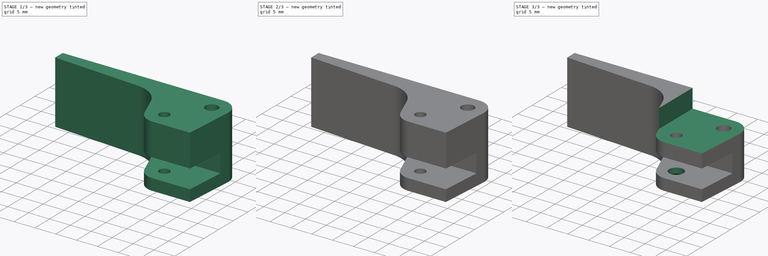
[diagram: build sequence overview — one tinted view per stage of 3, left to right]
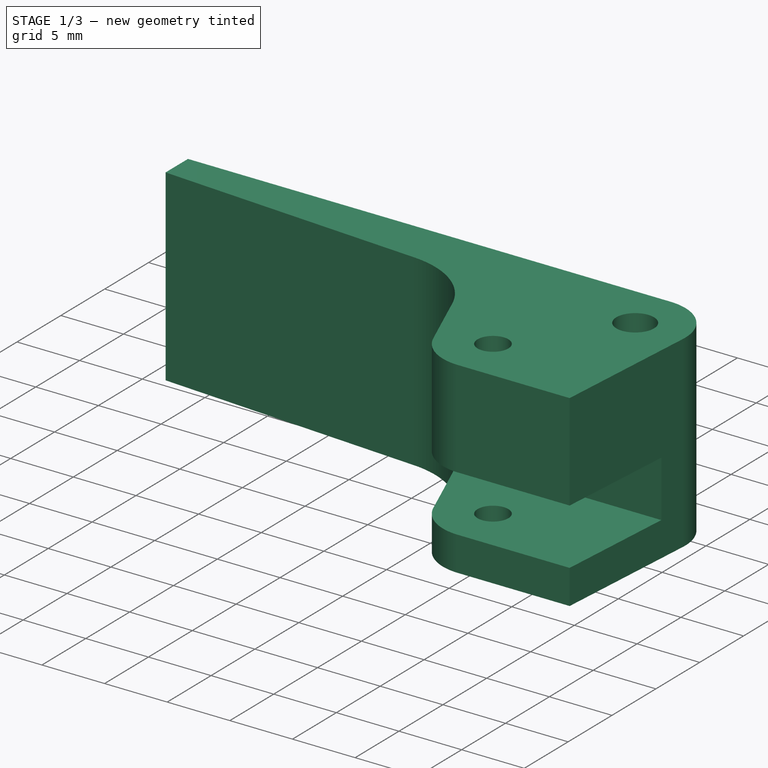
[diagram: stage 1 of 3 — iso view after this stage's code; geometry added in this stage tinted green]
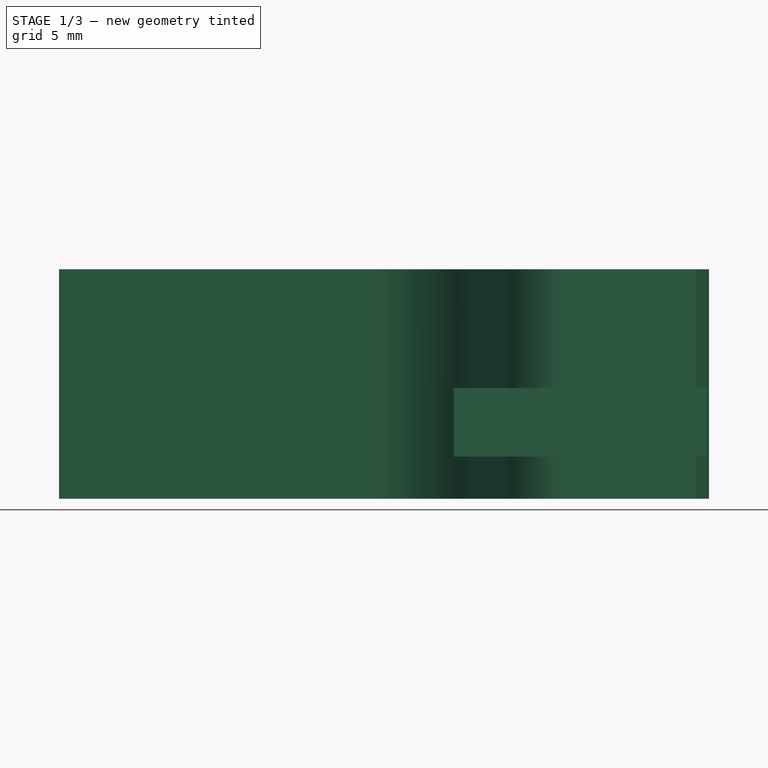
[diagram: stage 1 of 3 — front view after this stage's code; geometry added in this stage tinted green]
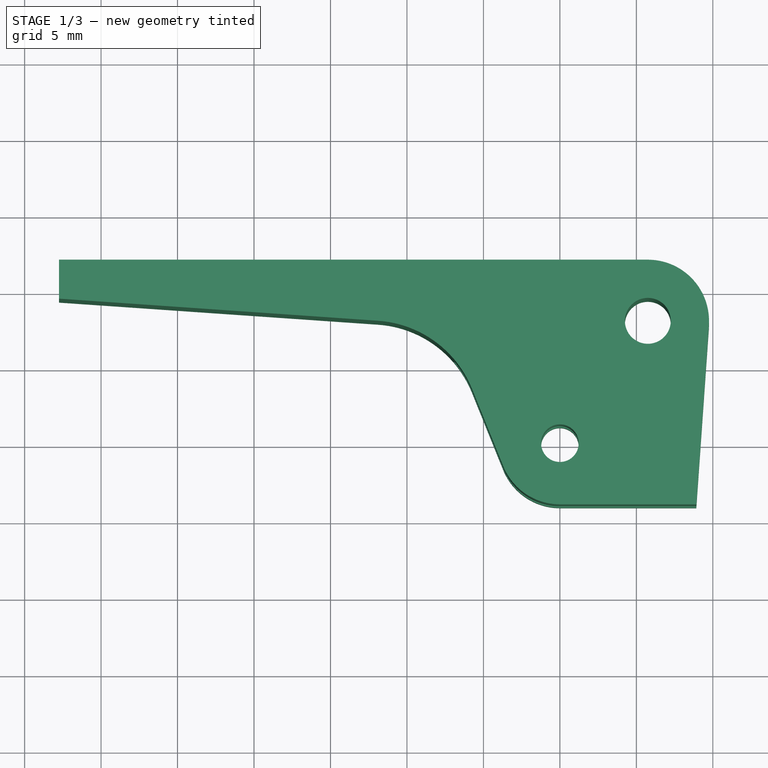
[diagram: stage 1 of 3 — top view after this stage's code; geometry added in this stage tinted green]
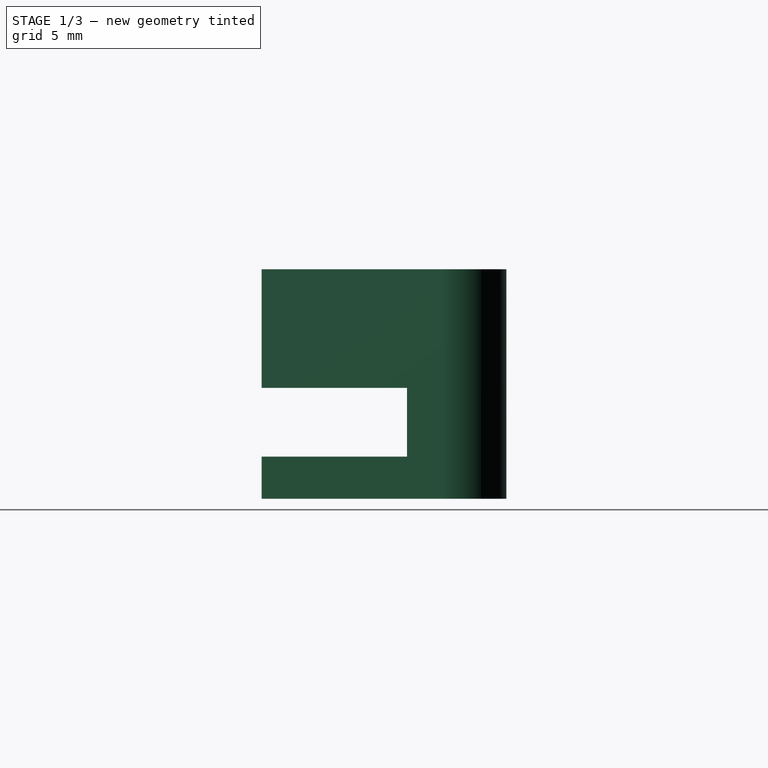
[diagram: stage 1 of 3 — right view after this stage's code; geometry added in this stage tinted green]
FCSTD DOCUMENT  (FreeCAD 0.15R4669 (Git))
Label: Extruder-lever
License: CC-BY 3.0
LicenseURL: http://creativecommons.org/licenses/by/3.0/
objects: Sketcher::SketchObject×6, PartDesign::Pocket×5, Part::Chamfer×2, PartDesign::Pad×1, Part::Feature×1
note: 21 computed .brp shape members not serialized (recipe doc carries the construction recipe); baked Part::Feature solids carry a one-line shape summary decoded from their .brp

FEATURE [Sketcher::SketchObject] Sketch  label="main-body-sketch"
  sketch-geometry (10):
    g0: LineSegment StartX=-3.70874 StartY=-1.49843 StartZ=0 EndX=-5.74874 EndY=3.55075 EndZ=0
    g1: LineSegment StartX=-11.8842 StartY=8.00524 StartZ=0 EndX=-32.75 EndY=9.45 EndZ=0
    g2: LineSegment StartX=-32.75 StartY=9.45 StartZ=0 EndX=-32.75 EndY=12 EndZ=0
    g3: LineSegment StartX=-32.75 StartY=12 StartZ=0 EndX=5.75 EndY=12 EndZ=0
    g4: LineSegment StartX=9.74024 StartY=7.72076 StartZ=0 EndX=8.92 EndY=-4 EndZ=0
    g5: LineSegment StartX=8.92 StartY=-4 StartZ=0 EndX=0 EndY=-4 EndZ=0
    g6: ArcOfCircle CenterX=5.75 CenterY=8 CenterZ=0 NormalX=0 NormalY=0 NormalZ=1 Radius=4 StartAngle=6.21332 EndAngle=7.85398
    g7: ArcOfCircle CenterX=0 CenterY=0 CenterZ=0 NormalX=0 NormalY=0 NormalZ=1 Radius=4 StartAngle=3.52557 EndAngle=4.71239
    g8: LineSegment [constr] StartX=-3.70874 StartY=-1.49843 StartZ=0 EndX=0 EndY=0 EndZ=0
    g9: ArcOfCircle CenterX=-12.3781 CenterY=0.872314 CenterZ=0 NormalX=0 NormalY=0 NormalZ=1 Radius=7.15 StartAngle=0.383972 EndAngle=1.50167
  constraints (26):
    c: Coincident(g1,g2)
    c: Coincident(g2,g3)
    c: Coincident(g4,g5)
    c: Horizontal(g3)
    c: Vertical(g2)
    c: Horizontal(g5)
    c: DistanceY(g-1,g2) = 12
    c: DistanceY(g2) = 2.55
    c: Tangent(g3,g6)
    c: Tangent(g4,g6)
    c: DistanceX(g-1,g6) = 5.75
    c: DistanceY(g-1,g6) = 8
    c: DistanceX(g3) = 38.5
    c: DistanceX(g-1,g4) = 8.92
    c: DistanceY(g-1,g4) = -4
    c: Tangent(g0,g7)
    c: Tangent(g5,g7)
    c: PointOnObject(g5,g-2)
    c: Angle(g-1,g0) = 1.95477
    c: Coincident(g8,g-1)
    c: Coincident(g8,g0)
    c: Perpendicular(g0,g8)
    c: Tangent(g0,g9)
    c: Tangent(g1,g9)
    c: DistanceX(g0,g0) = -2.04
    c: Radius(g9) = 7.15
FEATURE [PartDesign::Pad] Pad  label="main-body"
  Length = 15
  Length2 = 100
  Midplane = true
  Sketch = -> Sketch
  Type = 0
FEATURE [Sketcher::SketchObject] Sketch001  label="bottom-slot-sketch"
  Placement = pos=(0,-4,0) rot=(1,0,0;1.5708rad)
  Support = -> Pad [Face2]
  sketch-geometry (4):
    g0: LineSegment StartX=-15 StartY=-0.25 StartZ=0 EndX=15 EndY=-0.25 EndZ=0
    g1: LineSegment StartX=15 StartY=-0.25 StartZ=0 EndX=15 EndY=-4.75 EndZ=0
    g2: LineSegment StartX=15 StartY=-4.75 StartZ=0 EndX=-15 EndY=-4.75 EndZ=0
    g3: LineSegment StartX=-15 StartY=-4.75 StartZ=0 EndX=-15 EndY=-0.25 EndZ=0
  constraints (12):
    c: Coincident(g0,g1)
    c: Coincident(g1,g2)
    c: Coincident(g2,g3)
    c: Coincident(g3,g0)
    c: Horizontal(g0)
    c: Horizontal(g2)
    c: Vertical(g1)
    c: Vertical(g3)
    c: DistanceY(g1) = -4.5
    c: DistanceY(g-1,g0) = -0.25
    c: Symmetric(g0,g0,g-2)
    c: DistanceX(g2) = -30
FEATURE [PartDesign::Pocket] Pocket  label="bottom-slot"
  Length = 9.5
  Sketch = -> Sketch001
  Type = 0
FEATURE [Sketcher::SketchObject] Sketch002  label="lateral-drills-sketch"
  Placement = pos=(0,0,7.5) rot=(0,0,1;0rad)
  Support = -> Pocket [Face8]
  sketch-geometry (2):
    g0: Circle CenterX=0 CenterY=0 CenterZ=0 NormalX=0 NormalY=0 NormalZ=1 Radius=1.23
    g1: Circle CenterX=5.75 CenterY=8 CenterZ=0 NormalX=0 NormalY=0 NormalZ=1 Radius=1.5
  constraints (5):
    c: Radius(g0) = 1.23
    c: Coincident(g0,g-1)
    c: DistanceX(g-1,g1) = 5.75
    c: DistanceY(g-1,g1) = 8
    c: Radius(g1) = 1.5
FEATURE [PartDesign::Pocket] Pocket001  label="lateral-drills"
  Length = 5
  Sketch = -> Sketch002
  Type = 1
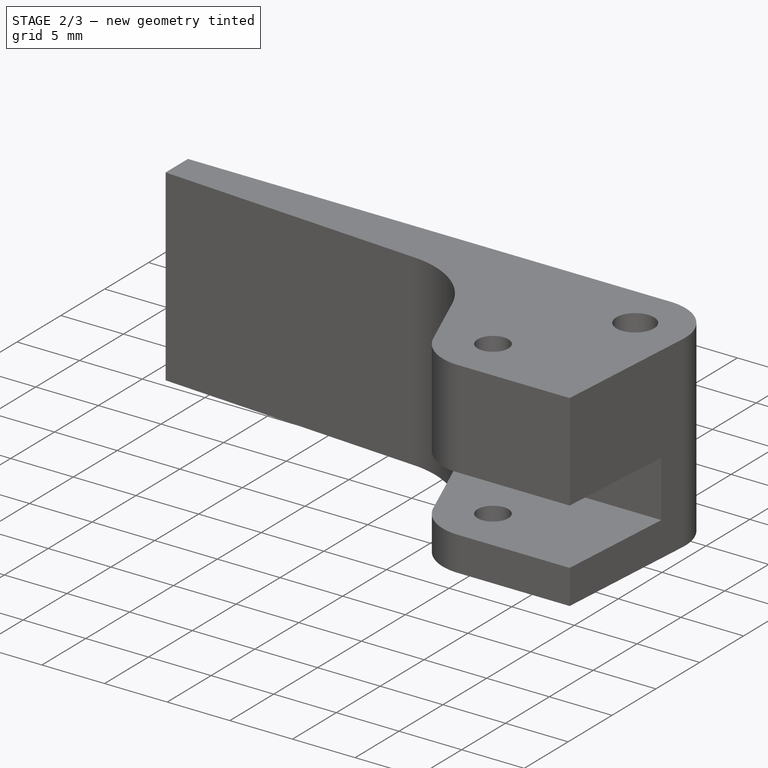
[diagram: stage 2 of 3 — iso view after this stage's code; geometry added in this stage tinted green]
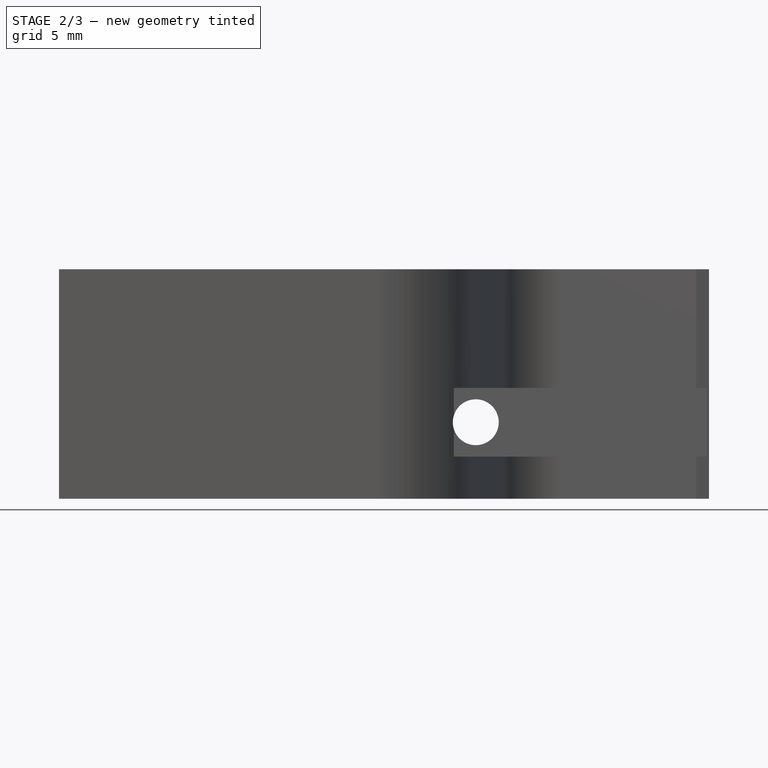
[diagram: stage 2 of 3 — front view after this stage's code; geometry added in this stage tinted green]
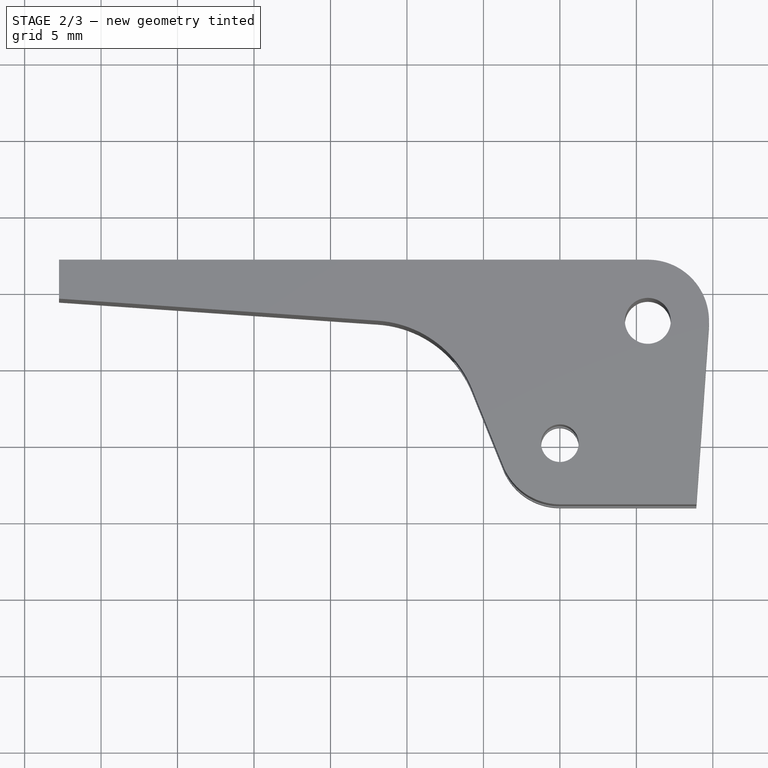
[diagram: stage 2 of 3 — top view after this stage's code; geometry added in this stage tinted green]
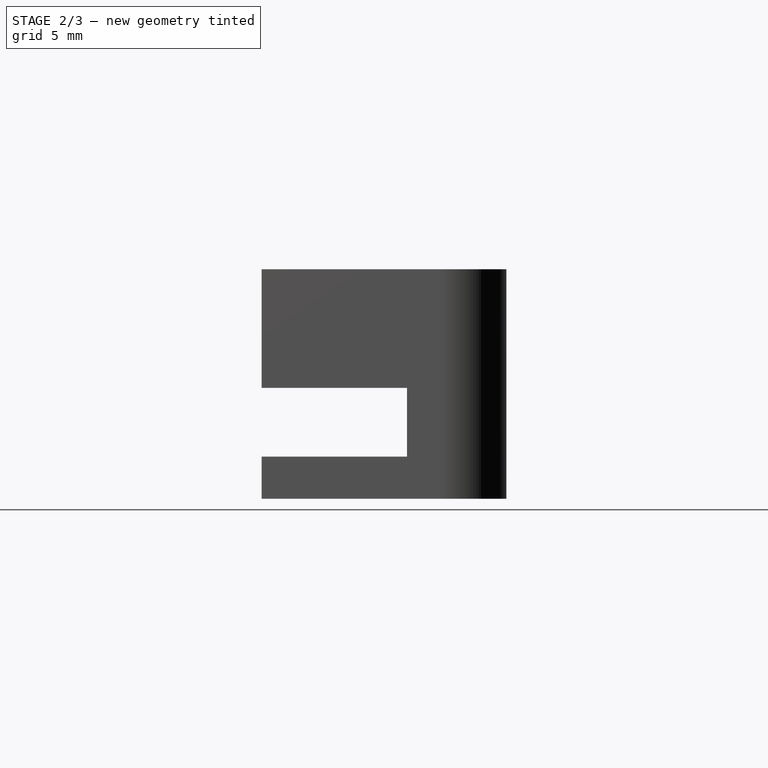
[diagram: stage 2 of 3 — right view after this stage's code; geometry added in this stage tinted green]
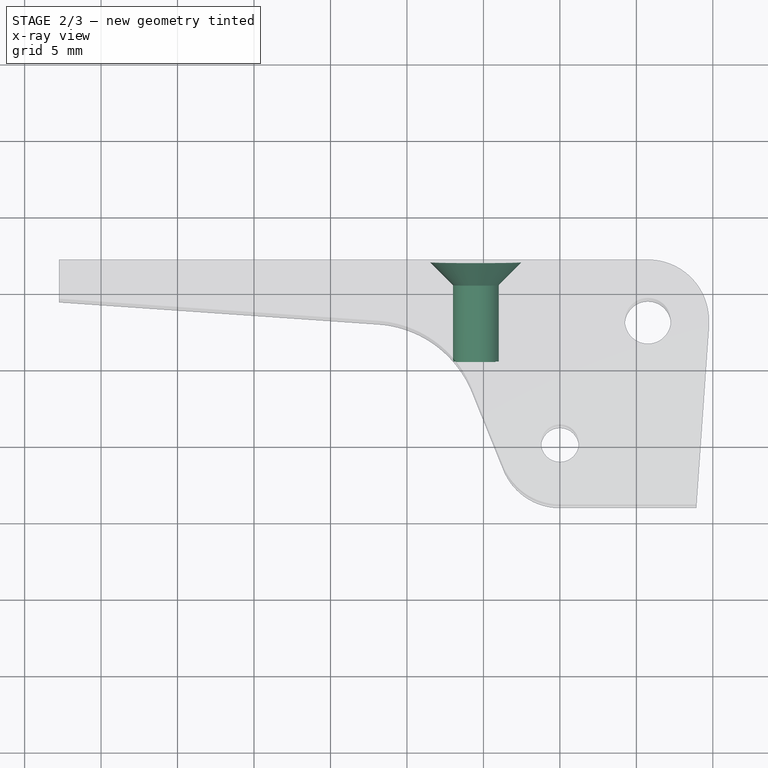
[diagram: stage 2 of 3 — x-ray composite at the top view; earlier geometry ghosted, this stage's added geometry solid]
FEATURE [Sketcher::SketchObject] Sketch003  label="top-drill-1-sketch"
  Placement = pos=(0,-4,0) rot=(1,0,0;1.5708rad)
  Support = -> Pocket001 [Face7]
  sketch-geometry (1):
    g0: Circle CenterX=-5.5 CenterY=-2.5 CenterZ=0 NormalX=0 NormalY=0 NormalZ=1 Radius=1.5
  constraints (3):
    c: Radius(g0) = 1.5
    c: DistanceX(g-1,g0) = -5.5
    c: DistanceY(g-1,g0) = -2.5
FEATURE [PartDesign::Pocket] Pocket002  label="top-drill-1"
  Length = 5
  Sketch = -> Sketch003
  Type = 1
FEATURE [Part::Chamfer] Chamfer  label="top-drill-chamfer"
  Base = -> Pocket002
  Edges = 1 edges r=1.5: [Edge49]
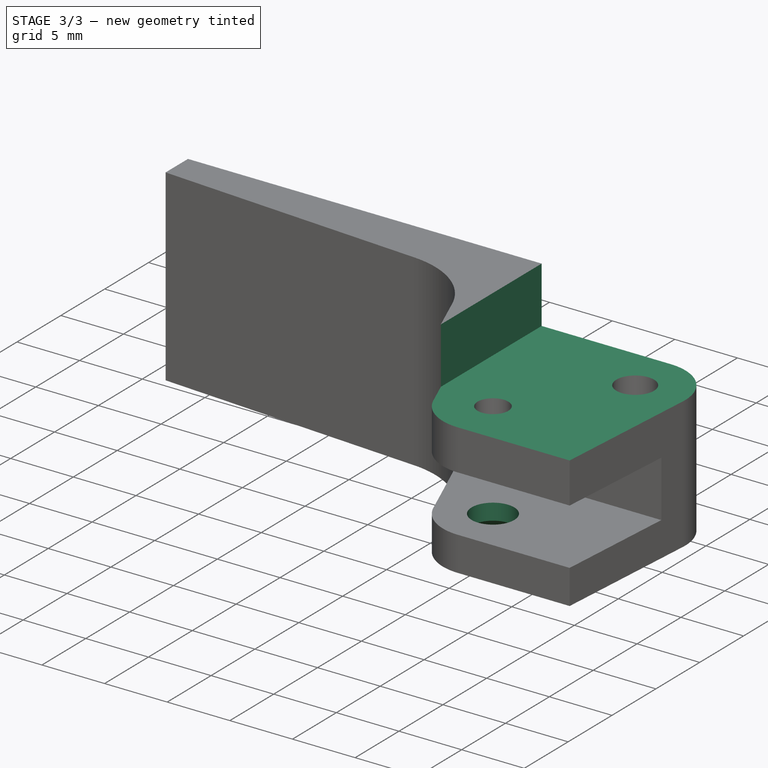
[diagram: stage 3 of 3 — iso view after this stage's code; geometry added in this stage tinted green]
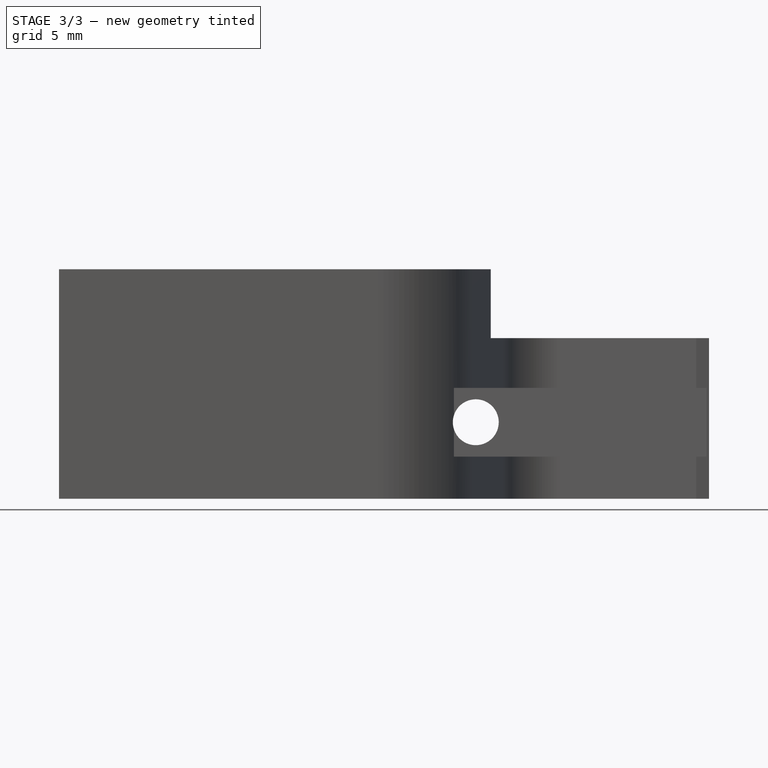
[diagram: stage 3 of 3 — front view after this stage's code; geometry added in this stage tinted green]
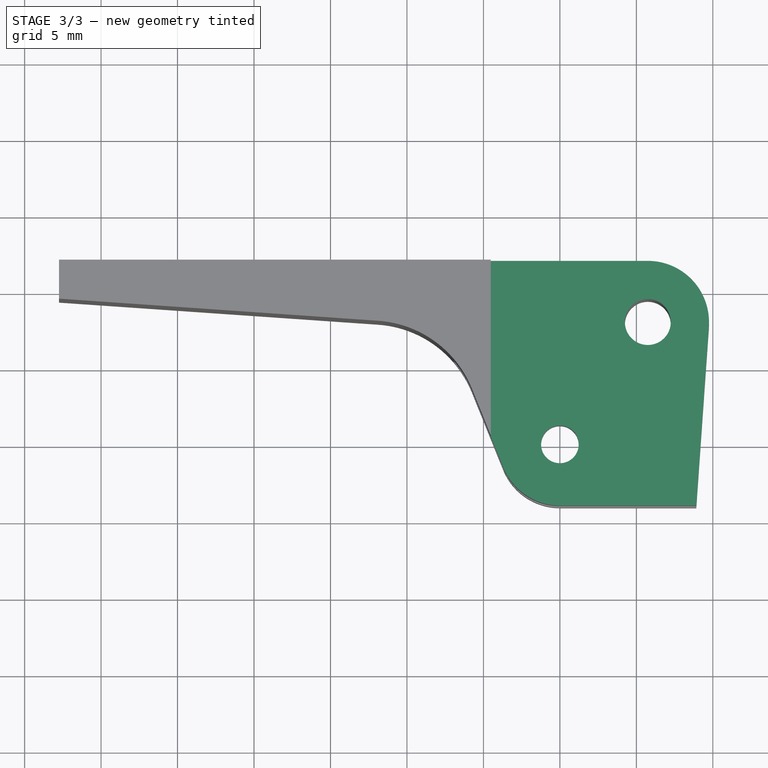
[diagram: stage 3 of 3 — top view after this stage's code; geometry added in this stage tinted green]
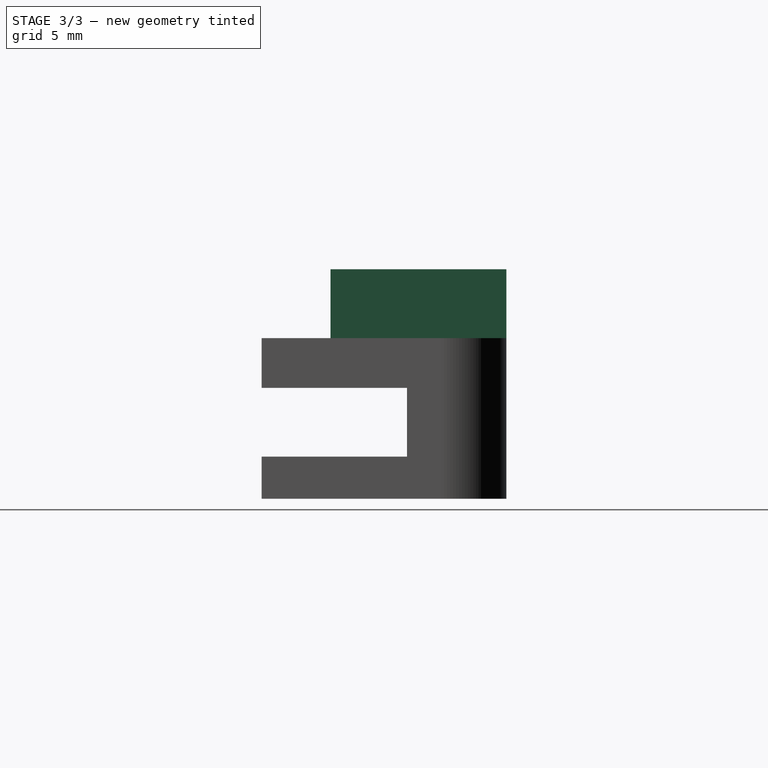
[diagram: stage 3 of 3 — right view after this stage's code; geometry added in this stage tinted green]
FEATURE [Sketcher::SketchObject] Sketch004  label="lateral-drill-2-sketch"
  Placement = pos=(0,0,-7.5) rot=(1,0,0;3.14159rad)
  Support = -> Chamfer [Face4]
  sketch-geometry (1):
    g0: Circle CenterX=0 CenterY=0 CenterZ=0 NormalX=0 NormalY=0 NormalZ=1 Radius=1.7
  constraints (2):
    c: Coincident(g0,g-1)
    c: Radius(g0) = 1.7
FEATURE [PartDesign::Pocket] Pocket003  label="lateral-drill-2"
  Length = 3
  Sketch = -> Sketch004
  Type = 0
FEATURE [Part::Chamfer] Chamfer001  label="shaft-drill-chamfer"
  Base = -> Pocket003
  Edges = 1 edges r=1.45: [Edge19]
FEATURE [Part::Feature] Chamfer001001  label="extruder-lever-final"
  shape: bbox 42.5 x 16 x 15 mm, 23 faces (baked)
FEATURE [Sketcher::SketchObject] Sketch005
  ExternalGeometry = -> [Chamfer001]
  Placement = pos=(0,12,0) rot=(0,0.707107,0.707107;3.14159rad)
  Support = -> Chamfer001 [Face6]
  sketch-geometry (4):
    g0: LineSegment StartX=4.51814 StartY=3 StartZ=0 EndX=-10 EndY=3 EndZ=0
    g1: LineSegment StartX=-10 StartY=3 StartZ=0 EndX=-10 EndY=13 EndZ=0
    g2: LineSegment StartX=-10 StartY=13 StartZ=0 EndX=4.51814 EndY=13 EndZ=0
    g3: LineSegment StartX=4.51814 StartY=13 StartZ=0 EndX=4.51814 EndY=3 EndZ=0
  constraints (9):
    c: Coincident(g0,g1)
    c: Coincident(g1,g2)
    c: Coincident(g2,g3)
    c: Coincident(g3,g0)
    c: Horizontal(g0)
    c: Horizontal(g2)
    c: Vertical(g1)
    c: Vertical(g3)
    c: Distance(g0,g-4) = 10.5
FEATURE [PartDesign::Pocket] Pocket004
  Length = 5
  Sketch = -> Sketch005
  Type = 1
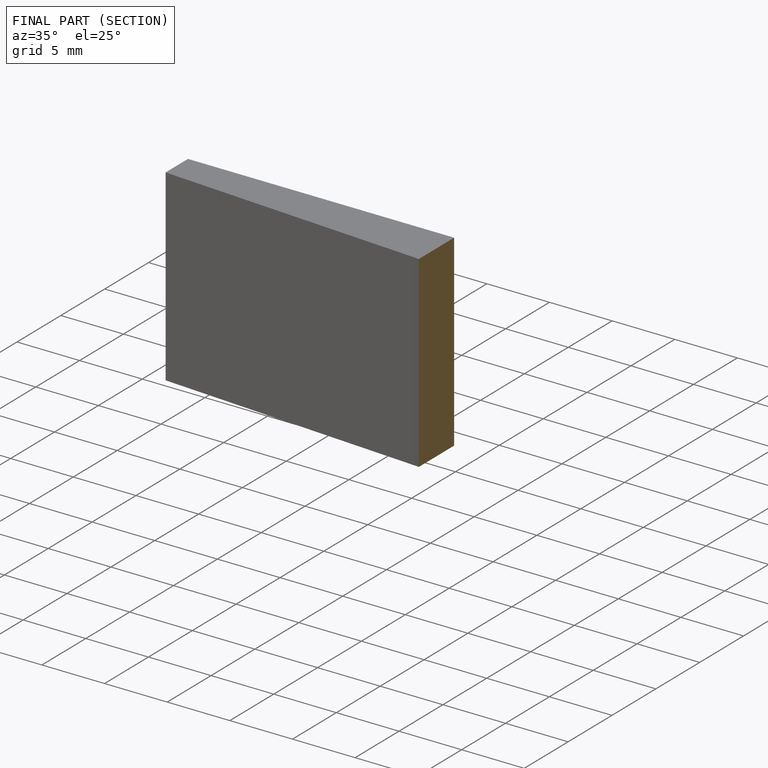
[diagram: finished part — half-section view (interior)]
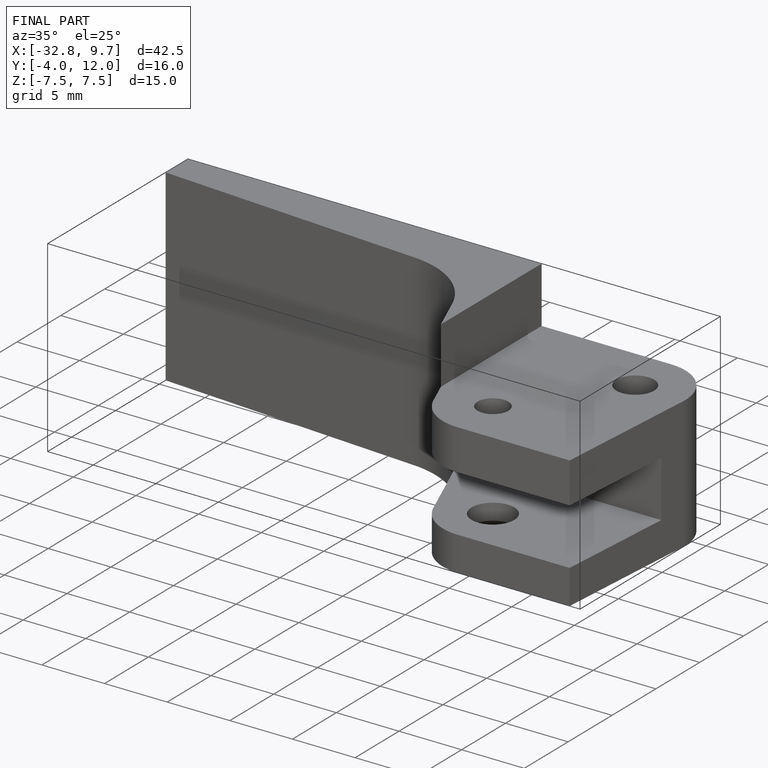
[diagram: finished part — iso view with bounding-box wireframe]
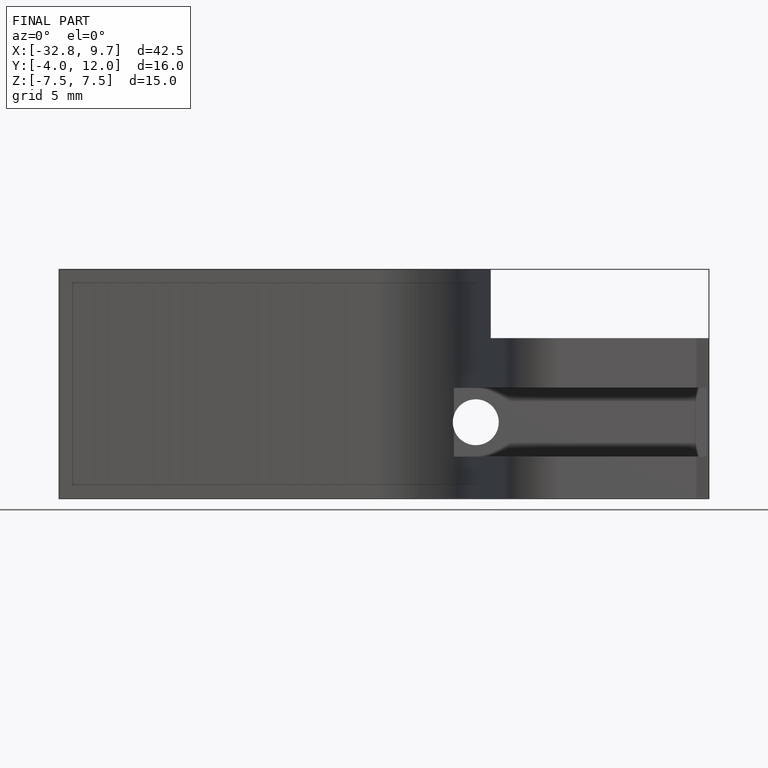
[diagram: finished part — front view with bounding-box wireframe]
